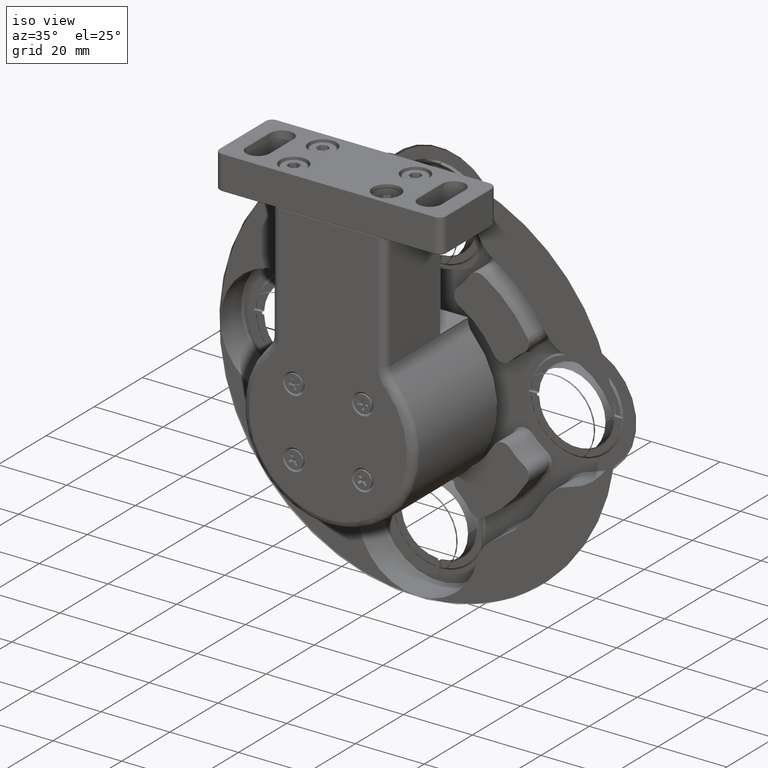
[diagram: clean part render]
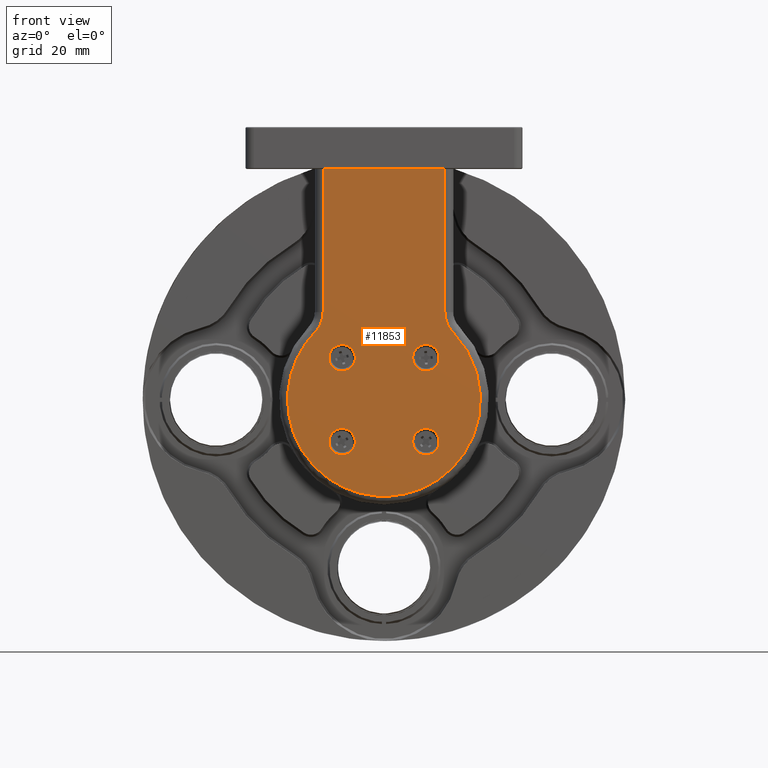
[diagram: tour spotlight — one face highlighted and labeled with its STEP entity id]
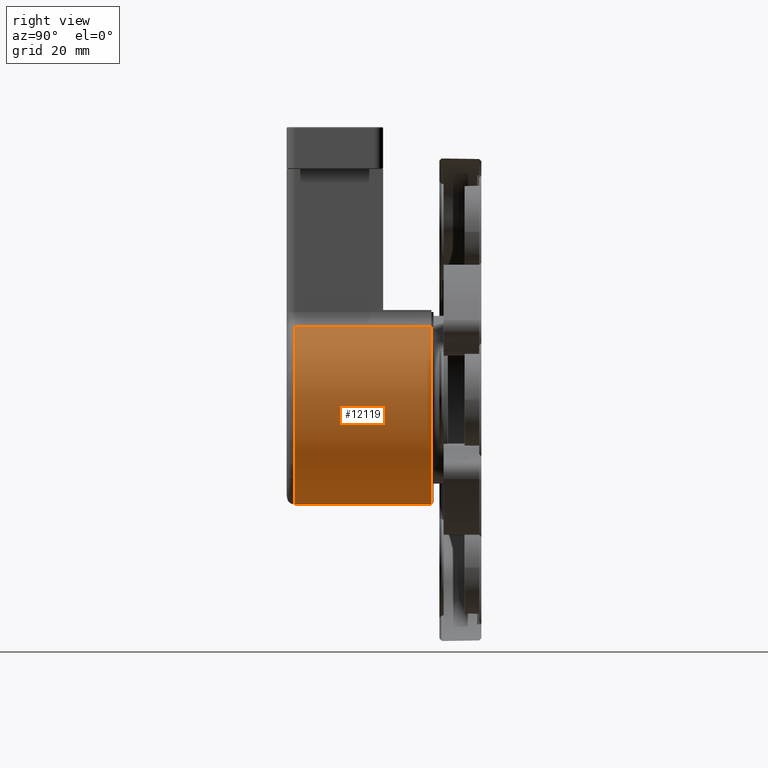
[diagram: tour spotlight — one face highlighted and labeled with its STEP entity id]
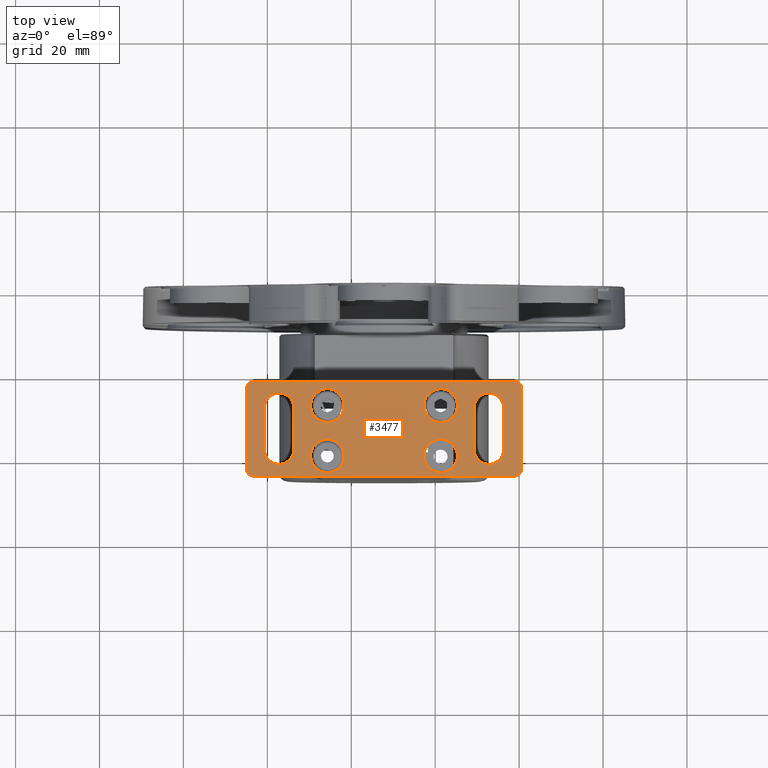
[diagram: tour spotlight — one face highlighted and labeled with its STEP entity id]
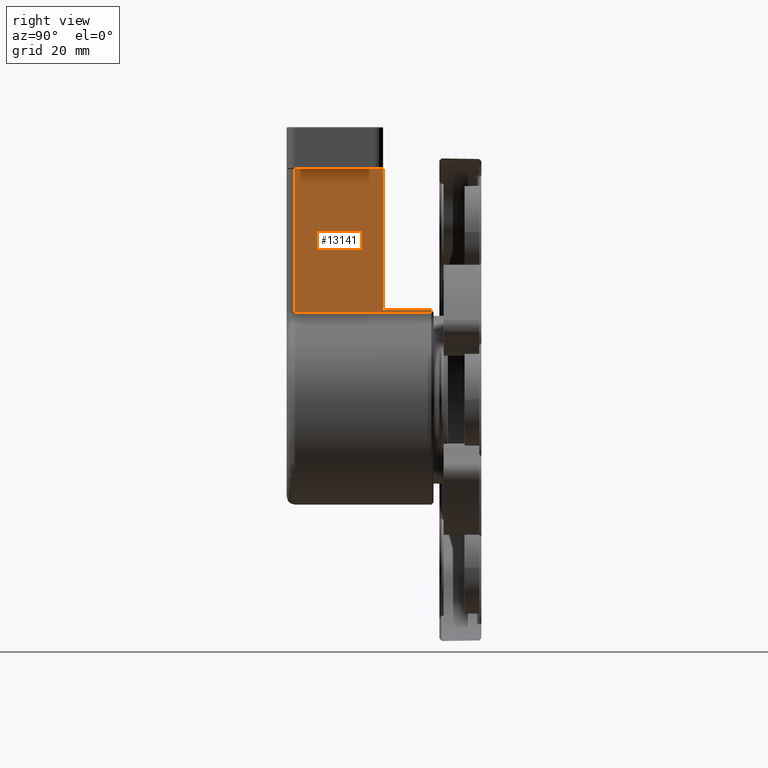
[diagram: tour spotlight — one face highlighted and labeled with its STEP entity id]
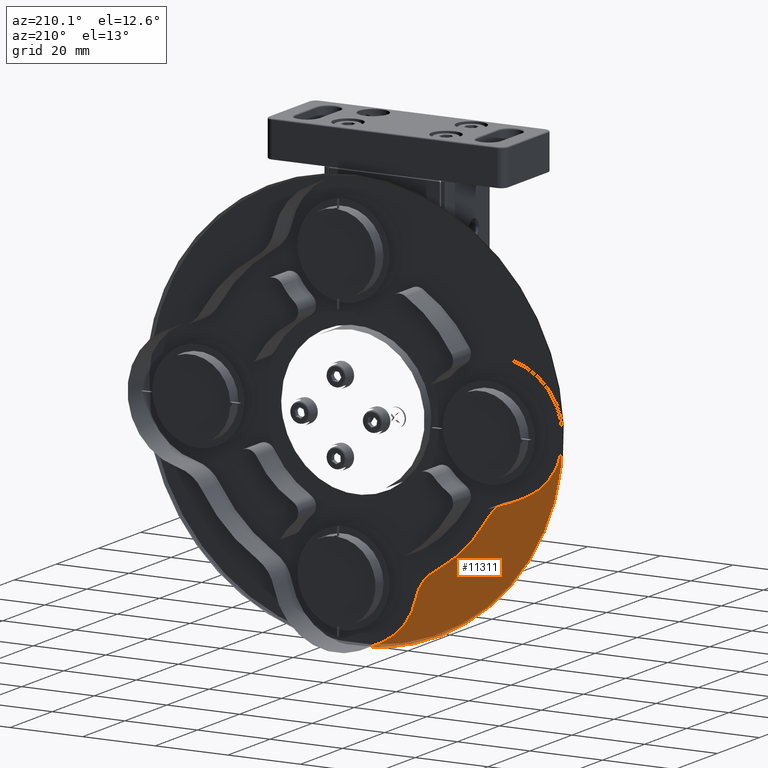
[diagram: tour spotlight — one face highlighted and labeled with its STEP entity id]
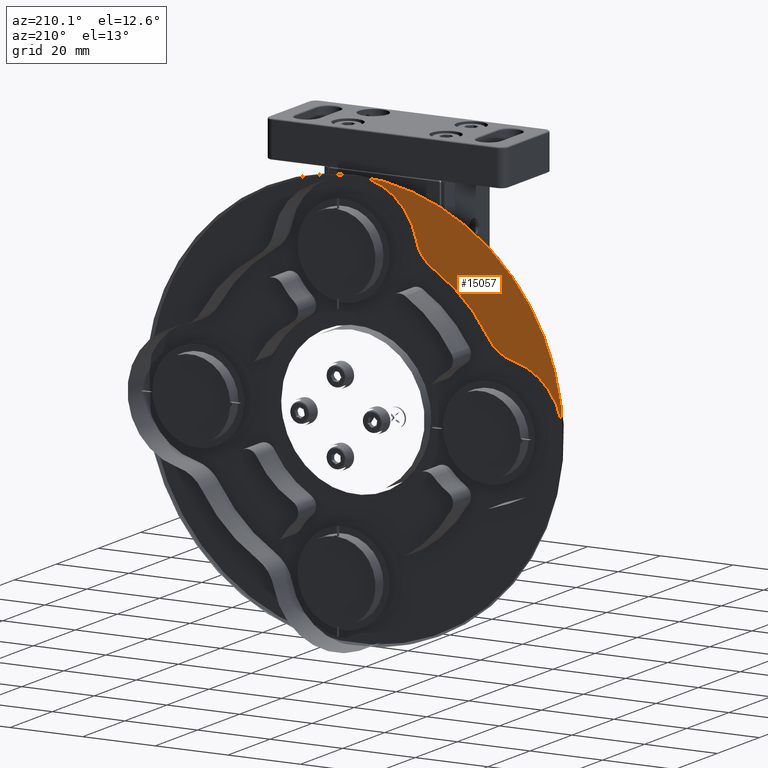
[diagram: tour spotlight — one face highlighted and labeled with its STEP entity id]
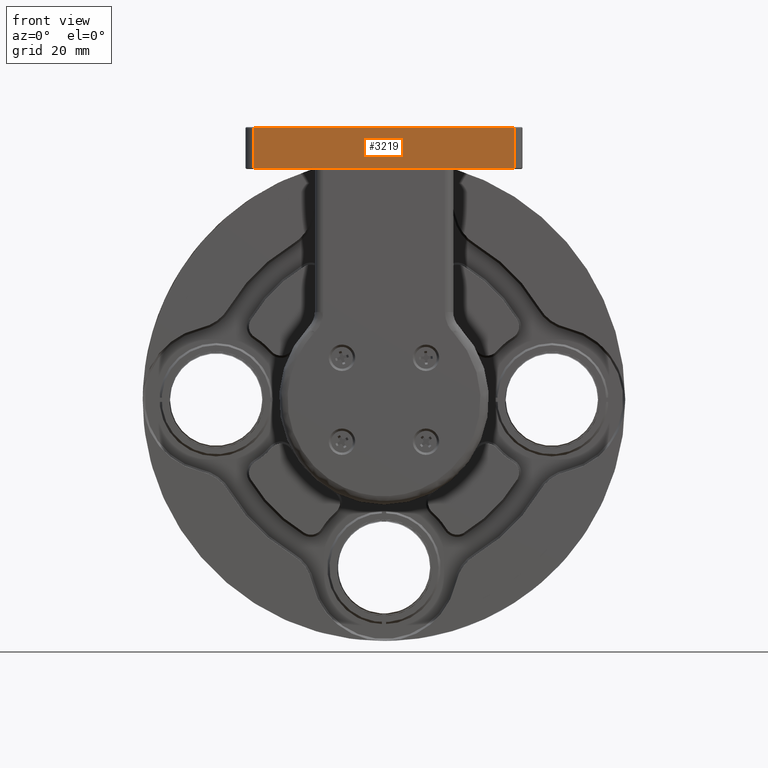
[diagram: tour spotlight — one face highlighted and labeled with its STEP entity id]
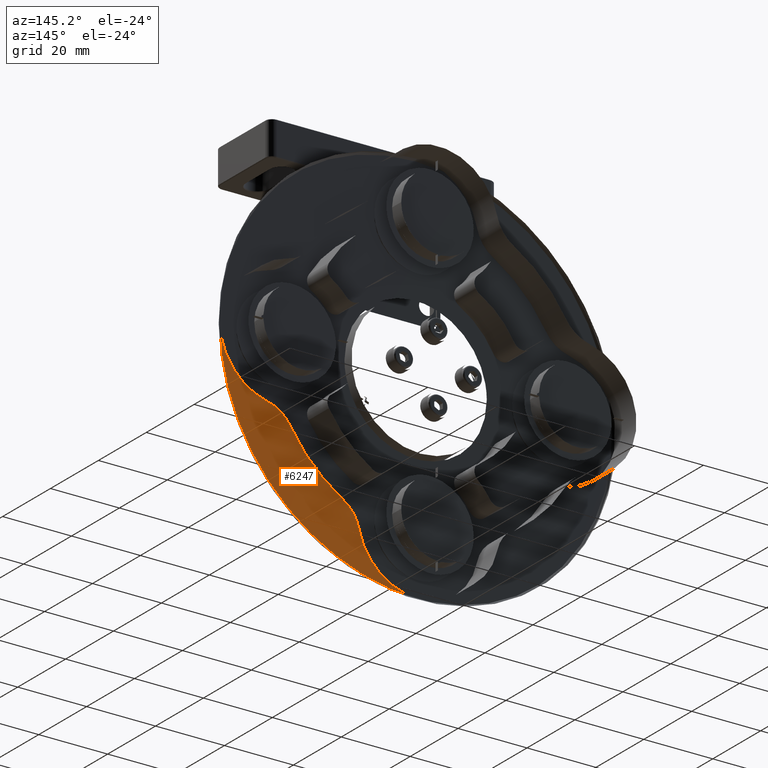
[diagram: tour spotlight — one face highlighted and labeled with its STEP entity id]
A machine part: a face-by-face anatomy tour. The part has 463 B-rep faces; the first image is the clean iso view, then the 8 largest visible faces are spotlighted one at a time (largest first), each with its STEP entity span.

Face 1 — front view, entity #11853. In plain terms, the highlighted planar face has unit normal (0, 1, 0).
Definition (entity closure, byte-faithful):
#113 = VERTEX_POINT ( 'NONE', #16134 ) ;
#339 = EDGE_CURVE ( 'NONE', #14257, #14257, #1466, .T. ) ;
#404 = LINE ( 'NONE', #3339, #3983 ) ;
#478 = CARTESIAN_POINT ( 'NONE',  ( -22.19565927654610960, -5.336517889477379484, 56.84999999999489262 ) ) ;
#678 = DIRECTION ( 'NONE',  ( 1.000000000000000000, 0.000000000000000000, -0.000000000000000000 ) ) ;
#719 = CARTESIAN_POINT ( 'NONE',  ( -56.03111030158331118, -5.336517889452011332, 46.99999999999996447 ) ) ;
#758 = CARTESIAN_POINT ( 'NONE',  ( -42.19565927654610960, -5.336517889477379484, 59.99999999999999289 ) ) ;
#875 = CARTESIAN_POINT ( 'NONE',  ( -46.69565927654610960, -5.336517889452011332, 89.07545668891039270 ) ) ;
#903 = CARTESIAN_POINT ( 'NONE',  ( -22.19565927654610960, -5.336517889516029456, 79.99999999999998579 ) ) ;
#1057 = FACE_BOUND ( 'NONE', #16730, .T. ) ;
#1309 = DIRECTION ( 'NONE',  ( -0.000000000000000000, 0.000000000000000000, -1.000000000000000000 ) ) ;
#1466 = CIRCLE ( 'NONE', #12555, 3.150000000005100276 ) ;
#1750 = EDGE_CURVE ( 'NONE', #10343, #10343, #2832, .T. ) ;
#2004 = CARTESIAN_POINT ( 'NONE',  ( -48.67899260987945098, -5.336517889452011332, 86.04056489722921697 ) ) ;
#2102 =( BOUNDED_CURVE ( )  B_SPLINE_CURVE ( 3, ( #12906, #12734, #3207, #10232, #719, #11571, #3552 ),
 .UNSPECIFIED., .F., .T. ) 
 B_SPLINE_CURVE_WITH_KNOTS ( ( 4, 3, 4 ),
 ( 0.000000000000000000, 0.5000000000000000000, 1.000000000000000000 ),
 .UNSPECIFIED. ) 
 CURVE ( )  GEOMETRIC_REPRESENTATION_ITEM ( )  RATIONAL_B_SPLINE_CURVE ( ( 1.000000000000000000, 0.5926418732377309873, 0.5926418732377309873, 1.000000000000000000, 0.5926418732377309873, 0.5926418732377309873, 1.000000000000000000 ) ) 
 REPRESENTATION_ITEM ( '' )  );
#2169 = DIRECTION ( 'NONE',  ( 0.000000000000000000, -1.000000000000000000, 0.000000000000000000 ) ) ;
#2379 = FACE_BOUND ( 'NONE', #11029, .T. ) ;
#2538 = AXIS2_PLACEMENT_3D ( 'NONE', #758, #2169, #8764 ) ;
#2670 = EDGE_CURVE ( 'NONE', #14726, #4566, #12658, .T. ) ;
#2832 = CIRCLE ( 'NONE', #8819, 3.150000000061936589 ) ;
#3037 = AXIS2_PLACEMENT_3D ( 'NONE', #6651, #17310, #9327 ) ;
#3207 = CARTESIAN_POINT ( 'NONE',  ( -8.360208251508856492, -5.336517889452011332, 47.00000000000000711 ) ) ;
#3339 = CARTESIAN_POINT ( 'NONE',  ( -32.19565927654610960, -5.336517889452012220, 125.0000000000000000 ) ) ;
#3354 = EDGE_CURVE ( 'NONE', #4566, #7593, #404, .T. ) ;
#3508 = ORIENTED_EDGE ( 'NONE', *, *, #15538, .F. ) ;
#3509 = CARTESIAN_POINT ( 'NONE',  ( -17.69565927654610604, -5.336517889452011332, 89.07545668891040691 ) ) ;
#3552 = CARTESIAN_POINT ( 'NONE',  ( -48.67899260987945098, -5.336517889452011332, 86.04056489722921697 ) ) ;
#3597 = EDGE_CURVE ( 'NONE', #13454, #13454, #16182, .T. ) ;
#3654 = EDGE_CURVE ( 'NONE', #113, #17037, #2102, .T. ) ;
#3685 = DIRECTION ( 'NONE',  ( 0.000000000000000000, -1.000000000000000000, 0.000000000000000000 ) ) ;
#3971 = LINE ( 'NONE', #8068, #7655 ) ;
#3983 = VECTOR ( 'NONE', #678, 1000.000000000000000 ) ;
#4103 = VERTEX_POINT ( 'NONE', #8315 ) ;
#4566 = VERTEX_POINT ( 'NONE', #16685 ) ;
#4964 = FACE_OUTER_BOUND ( 'NONE', #14673, .T. ) ;
#5174 = DIRECTION ( 'NONE',  ( 0.000000000000000000, -1.000000000000000000, 0.000000000000000000 ) ) ;
#5740 =( BOUNDED_CURVE ( )  B_SPLINE_CURVE ( 3, ( #11813, #17220, #875, #7899 ),
 .UNSPECIFIED., .F., .T. ) 
 B_SPLINE_CURVE_WITH_KNOTS ( ( 4, 4 ),
 ( 0.000000000000000000, 1.000000000000000000 ),
 .UNSPECIFIED. ) 
 CURVE ( )  GEOMETRIC_REPRESENTATION_ITEM ( )  RATIONAL_B_SPLINE_CURVE ( ( 1.000000000000000000, 0.9509752048749905429, 0.9509752048749905429, 1.000000000000000000 ) ) 
 REPRESENTATION_ITEM ( '' )  );
#5886 = DIRECTION ( 'NONE',  ( 0.000000000000000000, -0.000000000000000000, 1.000000000000000000 ) ) ;
#6123 = EDGE_LOOP ( 'NONE', ( #6753 ) ) ;
#6166 = CARTESIAN_POINT ( 'NONE',  ( -22.19565927654610960, -5.336517889516029456, 76.84999999993804920 ) ) ;
#6477 = PLANE ( 'NONE',  #3037 ) ;
#6651 = CARTESIAN_POINT ( 'NONE',  ( -32.19565927654610960, -5.336517889452012220, 69.99999999999998579 ) ) ;
#6753 = ORIENTED_EDGE ( 'NONE', *, *, #339, .F. ) ;
#6777 = ORIENTED_EDGE ( 'NONE', *, *, #3354, .F. ) ;
#7593 = VERTEX_POINT ( 'NONE', #16864 ) ;
#7601 = CARTESIAN_POINT ( 'NONE',  ( -46.69565927654610249, -5.336517889452011332, 90.92247595290767492 ) ) ;
#7655 = VECTOR ( 'NONE', #1309, 1000.000000000000000 ) ;
#7719 = EDGE_CURVE ( 'NONE', #17037, #14726, #5740, .T. ) ;
#7899 = CARTESIAN_POINT ( 'NONE',  ( -46.69565927654610249, -5.336517889452011332, 90.92247595290767492 ) ) ;
#8068 = CARTESIAN_POINT ( 'NONE',  ( -17.69565927654610604, -5.336517889452012220, 69.99999999999998579 ) ) ;
#8315 = CARTESIAN_POINT ( 'NONE',  ( -17.69565927654610960, -5.336517889452011332, 90.92247595290767492 ) ) ;
#8375 = CARTESIAN_POINT ( 'NONE',  ( -42.19565927654610960, -5.336517889477379484, 56.84999999999489262 ) ) ;
#8525 = AXIS2_PLACEMENT_3D ( 'NONE', #13123, #3685, #9122 ) ;
#8682 = CARTESIAN_POINT ( 'NONE',  ( -17.69565927654610960, -5.336517889452011332, 90.92247595290767492 ) ) ;
#8764 = DIRECTION ( 'NONE',  ( 0.000000000000000000, 0.000000000000000000, -1.000000000000000000 ) ) ;
#8819 = AXIS2_PLACEMENT_3D ( 'NONE', #903, #5174, #10599 ) ;
#9122 = DIRECTION ( 'NONE',  ( 0.000000000000000000, 0.000000000000000000, -1.000000000000000000 ) ) ;
#9327 = DIRECTION ( 'NONE',  ( 0.000000000000000000, -0.000000000000000000, 1.000000000000000000 ) ) ;
#9905 = DIRECTION ( 'NONE',  ( 0.000000000000000000, -1.000000000000000000, 0.000000000000000000 ) ) ;
#10232 = CARTESIAN_POINT ( 'NONE',  ( -32.19565927654608828, -5.336517889452011332, 46.99999999999998579 ) ) ;
#10343 = VERTEX_POINT ( 'NONE', #6166 ) ;
#10392 = FACE_BOUND ( 'NONE', #11717, .T. ) ;
#10520 = CARTESIAN_POINT ( 'NONE',  ( -42.19565927654610960, -5.336517889516029456, 76.84999999993804920 ) ) ;
#10599 = DIRECTION ( 'NONE',  ( 0.000000000000000000, 0.000000000000000000, -1.000000000000000000 ) ) ;
#11029 = EDGE_LOOP ( 'NONE', ( #13417 ) ) ;
#11525 = CARTESIAN_POINT ( 'NONE',  ( -17.00046648106410530, -5.336517889452011332, 87.36426203642727728 ) ) ;
#11571 = CARTESIAN_POINT ( 'NONE',  ( -65.30221430648111891, -5.336517889452011332, 68.95849166261916707 ) ) ;
#11717 = EDGE_LOOP ( 'NONE', ( #17571 ) ) ;
#11813 = CARTESIAN_POINT ( 'NONE',  ( -48.67899260987945098, -5.336517889452011332, 86.04056489722921697 ) ) ;
#11853 = ADVANCED_FACE ( 'NONE', ( #4964, #15894, #2379, #10392, #1057 ), #6477, .F. ) ;
#12310 = ORIENTED_EDGE ( 'NONE', *, *, #3654, .F. ) ;
#12520 = VECTOR ( 'NONE', #5886, 1000.000000000000000 ) ;
#12555 = AXIS2_PLACEMENT_3D ( 'NONE', #15413, #9905, #12580 ) ;
#12580 = DIRECTION ( 'NONE',  ( 0.000000000000000000, 0.000000000000000000, -1.000000000000000000 ) ) ;
#12655 = ORIENTED_EDGE ( 'NONE', *, *, #13920, .F. ) ;
#12658 = LINE ( 'NONE', #14416, #12520 ) ;
#12734 = CARTESIAN_POINT ( 'NONE',  ( 0.9108957533889017188, -5.336517889452011332, 68.95849166261922392 ) ) ;
#12906 = CARTESIAN_POINT ( 'NONE',  ( -15.71232594321277176, -5.336517889452011332, 86.04056489722921697 ) ) ;
#13021 =( BOUNDED_CURVE ( )  B_SPLINE_CURVE ( 3, ( #8682, #3509, #11525, #16926 ),
 .UNSPECIFIED., .F., .T. ) 
 B_SPLINE_CURVE_WITH_KNOTS ( ( 4, 4 ),
 ( 0.000000000000000000, 1.000000000000000000 ),
 .UNSPECIFIED. ) 
 CURVE ( )  GEOMETRIC_REPRESENTATION_ITEM ( )  RATIONAL_B_SPLINE_CURVE ( ( 1.000000000000000000, 0.9509752048749908759, 0.9509752048749908759, 1.000000000000000000 ) ) 
 REPRESENTATION_ITEM ( '' )  );
#13123 = CARTESIAN_POINT ( 'NONE',  ( -42.19565927654610960, -5.336517889516029456, 79.99999999999998579 ) ) ;
#13417 = ORIENTED_EDGE ( 'NONE', *, *, #3597, .F. ) ;
#13454 = VERTEX_POINT ( 'NONE', #10520 ) ;
#13920 = EDGE_CURVE ( 'NONE', #15127, #15127, #17292, .T. ) ;
#14257 = VERTEX_POINT ( 'NONE', #478 ) ;
#14302 = ORIENTED_EDGE ( 'NONE', *, *, #2670, .F. ) ;
#14416 = CARTESIAN_POINT ( 'NONE',  ( -46.69565927654610249, -5.336517889452012220, 69.99999999999998579 ) ) ;
#14673 = EDGE_LOOP ( 'NONE', ( #3508, #6777, #14302, #17345, #12310, #15724 ) ) ;
#14726 = VERTEX_POINT ( 'NONE', #7601 ) ;
#15127 = VERTEX_POINT ( 'NONE', #8375 ) ;
#15413 = CARTESIAN_POINT ( 'NONE',  ( -22.19565927654610960, -5.336517889477379484, 59.99999999999999289 ) ) ;
#15538 = EDGE_CURVE ( 'NONE', #7593, #4103, #3971, .T. ) ;
#15724 = ORIENTED_EDGE ( 'NONE', *, *, #15797, .F. ) ;
#15797 = EDGE_CURVE ( 'NONE', #4103, #113, #13021, .T. ) ;
#15894 = FACE_BOUND ( 'NONE', #6123, .T. ) ;
#16134 = CARTESIAN_POINT ( 'NONE',  ( -15.71232594321277176, -5.336517889452011332, 86.04056489722921697 ) ) ;
#16182 = CIRCLE ( 'NONE', #8525, 3.150000000061936589 ) ;
#16685 = CARTESIAN_POINT ( 'NONE',  ( -46.69565927654610249, -5.336517889452012220, 125.0000000000000000 ) ) ;
#16730 = EDGE_LOOP ( 'NONE', ( #12655 ) ) ;
#16864 = CARTESIAN_POINT ( 'NONE',  ( -17.69565927654610604, -5.336517889452012220, 125.0000000000000000 ) ) ;
#16926 = CARTESIAN_POINT ( 'NONE',  ( -15.71232594321277176, -5.336517889452011332, 86.04056489722921697 ) ) ;
#17037 = VERTEX_POINT ( 'NONE', #2004 ) ;
#17220 = CARTESIAN_POINT ( 'NONE',  ( -47.39085207202811034, -5.336517889452011332, 87.36426203642724886 ) ) ;
#17292 = CIRCLE ( 'NONE', #2538, 3.150000000005100276 ) ;
#17310 = DIRECTION ( 'NONE',  ( 0.000000000000000000, 1.000000000000000000, 0.000000000000000000 ) ) ;
#17345 = ORIENTED_EDGE ( 'NONE', *, *, #7719, .F. ) ;
#17571 = ORIENTED_EDGE ( 'NONE', *, *, #1750, .F. ) ;

Face 2 — right view, entity #12119. In plain terms, the highlighted cylindrical surface (partial cylindrical patch) has radius 25 mm, axis along (0, 1, 0).
Definition (entity closure, byte-faithful):
#488 = EDGE_CURVE ( 'NONE', #15331, #11247, #12273, .T. ) ;
#770 = FACE_OUTER_BOUND ( 'NONE', #8619, .T. ) ;
#1628 = CARTESIAN_POINT ( 'NONE',  ( -14.27899260987942931, -5.336517889452012220, 87.43539662742306007 ) ) ;
#1799 = CARTESIAN_POINT ( 'NONE',  ( -50.11232594321724321, 29.16348211055486317, 87.43539662741061136 ) ) ;
#1919 = DIRECTION ( 'NONE',  ( 0.000000000000000000, 1.000000000000000000, 0.000000000000000000 ) ) ;
#2398 = CARTESIAN_POINT ( 'NONE',  ( -14.27899260987943286, -3.336517889452010888, 87.43539662742306007 ) ) ;
#2772 = AXIS2_PLACEMENT_3D ( 'NONE', #8692, #1919, #12783 ) ;
#2873 = LINE ( 'NONE', #1628, #16922 ) ;
#3157 = CARTESIAN_POINT ( 'NONE',  ( -50.11232594321278810, -5.336517889452012220, 87.43539662742306007 ) ) ;
#3894 = DIRECTION ( 'NONE',  ( 0.000000000000000000, 1.000000000000000000, 0.000000000000000000 ) ) ;
#3914 = ORIENTED_EDGE ( 'NONE', *, *, #8811, .T. ) ;
#4876 = DIRECTION ( 'NONE',  ( 0.000000000000000000, 0.000000000000000000, 1.000000000000000000 ) ) ;
#6088 = EDGE_CURVE ( 'NONE', #7219, #11285, #8343, .T. ) ;
#6167 = CARTESIAN_POINT ( 'NONE',  ( -32.19565927654610960, 29.16348211054798512, 69.99999999999998579 ) ) ;
#6702 = DIRECTION ( 'NONE',  ( 0.000000000000000000, 1.000000000000000000, 0.000000000000000000 ) ) ;
#7216 = CARTESIAN_POINT ( 'NONE',  ( -14.27899260990338171, 29.16348211052644146, 87.43539662741061136 ) ) ;
#7219 = VERTEX_POINT ( 'NONE', #2398 ) ;
#8343 = CIRCLE ( 'NONE', #8640, 25.00000000000000711 ) ;
#8372 = CARTESIAN_POINT ( 'NONE',  ( -50.11232594321278810, -3.336517889452010888, 87.43539662742306007 ) ) ;
#8482 = ORIENTED_EDGE ( 'NONE', *, *, #6088, .T. ) ;
#8511 = CYLINDRICAL_SURFACE ( 'NONE', #2772, 25.00000000000000711 ) ;
#8619 = EDGE_LOOP ( 'NONE', ( #17043, #3914, #8482, #13726 ) ) ;
#8640 = AXIS2_PLACEMENT_3D ( 'NONE', #10475, #3894, #4876 ) ;
#8692 = CARTESIAN_POINT ( 'NONE',  ( -32.19565927654610960, -5.336517889452012220, 69.99999999999998579 ) ) ;
#8756 = DIRECTION ( 'NONE',  ( 8.326672684688672081E-16, 0.000000000000000000, 1.000000000000000000 ) ) ;
#8811 = EDGE_CURVE ( 'NONE', #11247, #7219, #2873, .T. ) ;
#10356 = LINE ( 'NONE', #3157, #16740 ) ;
#10475 = CARTESIAN_POINT ( 'NONE',  ( -32.19565927654610960, -3.336517889452010888, 69.99999999999998579 ) ) ;
#11247 = VERTEX_POINT ( 'NONE', #7216 ) ;
#11285 = VERTEX_POINT ( 'NONE', #8372 ) ;
#12119 = ADVANCED_FACE ( 'NONE', ( #770 ), #8511, .T. ) ;
#12260 = AXIS2_PLACEMENT_3D ( 'NONE', #6167, #12848, #8756 ) ;
#12273 = CIRCLE ( 'NONE', #12260, 25.00000000000000711 ) ;
#12783 = DIRECTION ( 'NONE',  ( 0.000000000000000000, 0.000000000000000000, 1.000000000000000000 ) ) ;
#12842 = DIRECTION ( 'NONE',  ( -0.000000000000000000, -1.000000000000000000, -0.000000000000000000 ) ) ;
#12848 = DIRECTION ( 'NONE',  ( -0.000000000000000000, -1.000000000000000000, -0.000000000000000000 ) ) ;
#13726 = ORIENTED_EDGE ( 'NONE', *, *, #14838, .T. ) ;
#14838 = EDGE_CURVE ( 'NONE', #11285, #15331, #10356, .T. ) ;
#15331 = VERTEX_POINT ( 'NONE', #1799 ) ;
#16740 = VECTOR ( 'NONE', #6702, 1000.000000000000000 ) ;
#16922 = VECTOR ( 'NONE', #12842, 1000.000000000000000 ) ;
#17043 = ORIENTED_EDGE ( 'NONE', *, *, #488, .T. ) ;

Face 3 — top view, entity #3477. In plain terms, the highlighted planar face has unit normal (0, 0, -1).
Definition (entity closure, byte-faithful):
#164 = CARTESIAN_POINT ( 'NONE',  ( -57.19565927654610960, 11.16348211054799933, 135.0000000000477485 ) ) ;
#315 = DIRECTION ( 'NONE',  ( 0.000000000000000000, 0.000000000000000000, -1.000000000000000000 ) ) ;
#338 = CARTESIAN_POINT ( 'NONE',  ( -65.19565927654610960, 17.46348211054798583, 135.0000000000000000 ) ) ;
#401 = AXIS2_PLACEMENT_3D ( 'NONE', #3779, #16046, #3868 ) ;
#442 = EDGE_CURVE ( 'NONE', #5658, #7713, #5994, .T. ) ;
#498 = FACE_OUTER_BOUND ( 'NONE', #15634, .T. ) ;
#587 = AXIS2_PLACEMENT_3D ( 'NONE', #1870, #12821, #632 ) ;
#632 = DIRECTION ( 'NONE',  ( 1.000000000000000000, 0.000000000000000000, 0.000000000000000000 ) ) ;
#830 = LINE ( 'NONE', #11679, #1500 ) ;
#981 = CARTESIAN_POINT ( 'NONE',  ( -10.69565927654611137, 1.163482110547997328, 135.0000000000000000 ) ) ;
#1016 = DIRECTION ( 'NONE',  ( -1.000000000000000000, 0.000000000000000000, 0.000000000000000000 ) ) ;
#1095 = DIRECTION ( 'NONE',  ( 1.734723475976822625E-16, 1.000000000000000000, -1.734723475976807587E-16 ) ) ;
#1134 = VECTOR ( 'NONE', #3683, 1000.000000000000000 ) ;
#1194 = EDGE_CURVE ( 'NONE', #2774, #5123, #17364, .T. ) ;
#1248 = CARTESIAN_POINT ( 'NONE',  ( -60.69565927654155502, 1.163482110548000881, 134.9999999999954525 ) ) ;
#1252 = EDGE_CURVE ( 'NONE', #2774, #12804, #4199, .T. ) ;
#1271 = VERTEX_POINT ( 'NONE', #10701 ) ;
#1493 = AXIS2_PLACEMENT_3D ( 'NONE', #7991, #2809, #5398 ) ;
#1500 = VECTOR ( 'NONE', #4917, 1000.000000000000000 ) ;
#1552 = ORIENTED_EDGE ( 'NONE', *, *, #11130, .F. ) ;
#1670 = DIRECTION ( 'NONE',  ( -1.000000000000000000, 5.256737805990324174E-17, 5.256737805990324174E-17 ) ) ;
#1755 = VECTOR ( 'NONE', #2878, 1000.000000000000000 ) ;
#1870 = CARTESIAN_POINT ( 'NONE',  ( -18.69565927654610960, 11.66348211054799044, 135.0000000000000000 ) ) ;
#1915 = ORIENTED_EDGE ( 'NONE', *, *, #15978, .T. ) ;
#2248 = VERTEX_POINT ( 'NONE', #7557 ) ;
#2485 = DIRECTION ( 'NONE',  ( -0.000000000000000000, -1.000000000000000000, -0.000000000000000000 ) ) ;
#2577 = CARTESIAN_POINT ( 'NONE',  ( -45.69565927654610249, -0.3365178894520108877, 135.0000000000000000 ) ) ;
#2623 = DIRECTION ( 'NONE',  ( -0.000000000000000000, 0.000000000000000000, -1.000000000000000000 ) ) ;
#2691 = CIRCLE ( 'NONE', #3821, 3.999999999999996447 ) ;
#2774 = VERTEX_POINT ( 'NONE', #7754 ) ;
#2809 = DIRECTION ( 'NONE',  ( -0.000000000000000000, -0.000000000000000000, -1.000000000000000000 ) ) ;
#2878 = DIRECTION ( 'NONE',  ( -1.734723475976822625E-16, 1.000000000000000000, -1.734723475976807587E-16 ) ) ;
#3134 = CARTESIAN_POINT ( 'NONE',  ( -53.69565927654610960, 6.163482110547995774, 135.0000000000000000 ) ) ;
#3141 = VERTEX_POINT ( 'NONE', #11189 ) ;
#3304 = CIRCLE ( 'NONE', #10684, 3.500000000029389380 ) ;
#3469 = CIRCLE ( 'NONE', #15388, 3.500000000018023361 ) ;
#3477 = ADVANCED_FACE ( 'NONE', ( #12865, #16928, #12691, #12507, #498, #8414, #4755 ), #16753, .F. ) ;
#3494 = CARTESIAN_POINT ( 'NONE',  ( -1.195659276546107153, -5.136517889484975008, 134.9999999999670308 ) ) ;
#3634 = EDGE_CURVE ( 'NONE', #1271, #1271, #12221, .T. ) ;
#3644 = DIRECTION ( 'NONE',  ( 1.000000000000000000, 0.000000000000000000, 0.000000000000000000 ) ) ;
#3683 = DIRECTION ( 'NONE',  ( -0.000000000000000000, -1.000000000000000000, -0.000000000000000000 ) ) ;
#3778 = VERTEX_POINT ( 'NONE', #12096 ) ;
#3779 = CARTESIAN_POINT ( 'NONE',  ( -18.69565927654610960, -0.3365178894520108877, 135.0000000000000000 ) ) ;
#3821 = AXIS2_PLACEMENT_3D ( 'NONE', #2577, #8008, #3644 ) ;
#3868 = DIRECTION ( 'NONE',  ( 1.000000000000000000, 0.000000000000000000, 0.000000000000000000 ) ) ;
#4078 = DIRECTION ( 'NONE',  ( 1.000000000000000000, 0.000000000000000000, 0.000000000000000000 ) ) ;
#4111 = EDGE_CURVE ( 'NONE', #17484, #5658, #17374, .T. ) ;
#4199 = CIRCLE ( 'NONE', #8478, 1.800000000032636605 ) ;
#4221 = EDGE_LOOP ( 'NONE', ( #15465 ) ) ;
#4262 = EDGE_LOOP ( 'NONE', ( #17285 ) ) ;
#4346 = VERTEX_POINT ( 'NONE', #13378 ) ;
#4431 = EDGE_CURVE ( 'NONE', #2248, #10310, #3469, .T. ) ;
#4542 = AXIS2_PLACEMENT_3D ( 'NONE', #5023, #15948, #11874 ) ;
#4623 = EDGE_CURVE ( 'NONE', #7703, #3778, #15631, .T. ) ;
#4661 = CIRCLE ( 'NONE', #14584, 1.799999999987617061 ) ;
#4755 = FACE_BOUND ( 'NONE', #8800, .T. ) ;
#4905 = CIRCLE ( 'NONE', #1493, 1.800000000032636605 ) ;
#4917 = DIRECTION ( 'NONE',  ( 0.000000000000000000, 1.000000000000000000, -0.000000000000000000 ) ) ;
#4946 = EDGE_CURVE ( 'NONE', #7414, #3778, #4905, .T. ) ;
#5023 = CARTESIAN_POINT ( 'NONE',  ( -7.195659276546105154, 1.163482110548000881, 134.9999999999909051 ) ) ;
#5070 = LINE ( 'NONE', #981, #16153 ) ;
#5123 = VERTEX_POINT ( 'NONE', #3494 ) ;
#5170 = EDGE_CURVE ( 'NONE', #13219, #9559, #830, .T. ) ;
#5280 = ORIENTED_EDGE ( 'NONE', *, *, #15954, .T. ) ;
#5398 = DIRECTION ( 'NONE',  ( -1.000000000000000000, 0.000000000000000000, 0.000000000000000000 ) ) ;
#5455 = AXIS2_PLACEMENT_3D ( 'NONE', #9569, #9481, #8147 ) ;
#5658 = VERTEX_POINT ( 'NONE', #1248 ) ;
#5663 = CARTESIAN_POINT ( 'NONE',  ( -64.99565927657907594, -3.336517889452008223, 134.9999999999670308 ) ) ;
#5703 = CARTESIAN_POINT ( 'NONE',  ( -41.69565927654610960, 11.66348211054799044, 135.0000000000000000 ) ) ;
#5741 = DIRECTION ( 'NONE',  ( -1.000000000000000000, 0.000000000000000000, -0.000000000000000000 ) ) ;
#5994 = LINE ( 'NONE', #11424, #1755 ) ;
#6226 = CARTESIAN_POINT ( 'NONE',  ( -3.695659276533898918, 11.16348211054799755, 135.0000000000216005 ) ) ;
#6308 = EDGE_CURVE ( 'NONE', #7703, #9559, #4661, .T. ) ;
#6544 = CARTESIAN_POINT ( 'NONE',  ( -1.195659276546107153, -3.336517889452010888, 134.9999999999340616 ) ) ;
#6906 = DIRECTION ( 'NONE',  ( -1.000000000000000000, 0.000000000000000000, 0.000000000000000000 ) ) ;
#6923 = ORIENTED_EDGE ( 'NONE', *, *, #10507, .T. ) ;
#7095 = DIRECTION ( 'NONE',  ( 0.000000000000000000, -0.000000000000000000, -1.000000000000000000 ) ) ;
#7140 = EDGE_LOOP ( 'NONE', ( #13900, #10984, #1552, #1915 ) ) ;
#7338 = EDGE_CURVE ( 'NONE', #10787, #10787, #2691, .T. ) ;
#7414 = VERTEX_POINT ( 'NONE', #9688 ) ;
#7430 = ORIENTED_EDGE ( 'NONE', *, *, #4623, .T. ) ;
#7557 = CARTESIAN_POINT ( 'NONE',  ( -10.69565927656998205, 11.16348211054800288, 135.0000000000238742 ) ) ;
#7703 = VERTEX_POINT ( 'NONE', #9324 ) ;
#7713 = VERTEX_POINT ( 'NONE', #14470 ) ;
#7754 = CARTESIAN_POINT ( 'NONE',  ( -63.19565927654609538, -5.136517889429145001, 134.9999999999789679 ) ) ;
#7872 = LINE ( 'NONE', #8048, #1134 ) ;
#7953 = CIRCLE ( 'NONE', #4542, 3.500000000018023361 ) ;
#7991 = CARTESIAN_POINT ( 'NONE',  ( -63.19565927654610960, 15.66348211054799755, 134.9999999999340616 ) ) ;
#8008 = DIRECTION ( 'NONE',  ( 0.000000000000000000, 0.000000000000000000, 1.000000000000000000 ) ) ;
#8048 = CARTESIAN_POINT ( 'NONE',  ( -64.99565927654610675, 17.66348211054799577, 135.0000000000000000 ) ) ;
#8089 = CARTESIAN_POINT ( 'NONE',  ( 0.6043407234584414756, 15.66348211054799044, 134.9999999999954525 ) ) ;
#8147 = DIRECTION ( 'NONE',  ( 1.000000000000000000, -1.796677885847214746E-15, 0.000000000000000000 ) ) ;
#8257 = CARTESIAN_POINT ( 'NONE',  ( -45.69565927654610249, 11.66348211054799044, 135.0000000000000000 ) ) ;
#8414 = FACE_BOUND ( 'NONE', #7140, .T. ) ;
#8465 = VERTEX_POINT ( 'NONE', #5703 ) ;
#8478 = AXIS2_PLACEMENT_3D ( 'NONE', #13202, #14700, #1016 ) ;
#8744 = DIRECTION ( 'NONE',  ( -0.000000000000000000, -1.000000000000000000, -0.000000000000000000 ) ) ;
#8800 = EDGE_LOOP ( 'NONE', ( #11138, #6923, #14339, #12957 ) ) ;
#9296 = ORIENTED_EDGE ( 'NONE', *, *, #1252, .F. ) ;
#9324 = CARTESIAN_POINT ( 'NONE',  ( -1.195659276546108041, 17.46348211054943889, 135.0000000000193268 ) ) ;
#9456 = VECTOR ( 'NONE', #1670, 1000.000000000000000 ) ;
#9481 = DIRECTION ( 'NONE',  ( 0.000000000000000000, -0.000000000000000000, -1.000000000000000000 ) ) ;
#9559 = VERTEX_POINT ( 'NONE', #8089 ) ;
#9569 = CARTESIAN_POINT ( 'NONE',  ( -57.19565927654610960, 1.163482110548000881, 134.9999999999909051 ) ) ;
#9688 = CARTESIAN_POINT ( 'NONE',  ( -64.99565927652518837, 15.66348211054799755, 134.9999999999789679 ) ) ;
#9756 = CARTESIAN_POINT ( 'NONE',  ( -1.195659276546107153, 15.66348211054799044, 134.9999999999909051 ) ) ;
#9887 = ORIENTED_EDGE ( 'NONE', *, *, #4946, .F. ) ;
#10077 = ORIENTED_EDGE ( 'NONE', *, *, #6308, .F. ) ;
#10310 = VERTEX_POINT ( 'NONE', #6226 ) ;
#10507 = EDGE_CURVE ( 'NONE', #7713, #4346, #3304, .T. ) ;
#10517 = CARTESIAN_POINT ( 'NONE',  ( -3.695659276546105598, 1.163482110548000881, 135.0000000000000000 ) ) ;
#10684 = AXIS2_PLACEMENT_3D ( 'NONE', #164, #7095, #4078 ) ;
#10701 = CARTESIAN_POINT ( 'NONE',  ( -14.69565927654611137, 11.66348211054799044, 135.0000000000000000 ) ) ;
#10787 = VERTEX_POINT ( 'NONE', #14691 ) ;
#10984 = ORIENTED_EDGE ( 'NONE', *, *, #4431, .T. ) ;
#11027 = VECTOR ( 'NONE', #15943, 1000.000000000000000 ) ;
#11130 = EDGE_CURVE ( 'NONE', #11699, #10310, #16279, .T. ) ;
#11138 = ORIENTED_EDGE ( 'NONE', *, *, #442, .T. ) ;
#11189 = CARTESIAN_POINT ( 'NONE',  ( -10.69565927654156035, 1.163482110547997328, 134.9999999999954525 ) ) ;
#11316 = ORIENTED_EDGE ( 'NONE', *, *, #5170, .T. ) ;
#11317 = DIRECTION ( 'NONE',  ( 0.000000000000000000, -0.000000000000000000, -1.000000000000000000 ) ) ;
#11413 = LINE ( 'NONE', #3134, #13079 ) ;
#11424 = CARTESIAN_POINT ( 'NONE',  ( -60.69565927654610249, 6.163482110547986004, 135.0000000000000000 ) ) ;
#11679 = CARTESIAN_POINT ( 'NONE',  ( 0.6043407234538906714, 17.66348211054798867, 135.0000000000000000 ) ) ;
#11699 = VERTEX_POINT ( 'NONE', #16690 ) ;
#11874 = DIRECTION ( 'NONE',  ( 1.000000000000000000, 0.000000000000000000, 0.000000000000000000 ) ) ;
#12057 = EDGE_LOOP ( 'NONE', ( #12769 ) ) ;
#12096 = CARTESIAN_POINT ( 'NONE',  ( -63.19565927654610960, 17.46348211058096211, 134.9999999999670308 ) ) ;
#12221 = CIRCLE ( 'NONE', #587, 3.999999999999996447 ) ;
#12326 = AXIS2_PLACEMENT_3D ( 'NONE', #6544, #2623, #17286 ) ;
#12347 = DIRECTION ( 'NONE',  ( 0.000000000000000000, 0.000000000000000000, 1.000000000000000000 ) ) ;
#12432 = DIRECTION ( 'NONE',  ( 1.000000000000000000, 0.000000000000000000, 0.000000000000000000 ) ) ;
#12507 = FACE_BOUND ( 'NONE', #4221, .T. ) ;
#12579 = CARTESIAN_POINT ( 'NONE',  ( -53.69565927655066417, 1.163482110547995774, 134.9999999999954525 ) ) ;
#12654 = CARTESIAN_POINT ( 'NONE',  ( -7.195659276546105154, 11.16348211054799933, 135.0000000000477485 ) ) ;
#12691 = FACE_BOUND ( 'NONE', #12057, .T. ) ;
#12769 = ORIENTED_EDGE ( 'NONE', *, *, #7338, .F. ) ;
#12804 = VERTEX_POINT ( 'NONE', #5663 ) ;
#12821 = DIRECTION ( 'NONE',  ( 0.000000000000000000, 0.000000000000000000, 1.000000000000000000 ) ) ;
#12865 = FACE_BOUND ( 'NONE', #4262, .T. ) ;
#12957 = ORIENTED_EDGE ( 'NONE', *, *, #4111, .T. ) ;
#13079 = VECTOR ( 'NONE', #8744, 1000.000000000000000 ) ;
#13202 = CARTESIAN_POINT ( 'NONE',  ( -63.19565927654610960, -3.336517889452000674, 134.9999999999340616 ) ) ;
#13219 = VERTEX_POINT ( 'NONE', #14894 ) ;
#13378 = CARTESIAN_POINT ( 'NONE',  ( -53.69565927653065529, 11.16348211054799933, 135.0000000000477485 ) ) ;
#13670 = DIRECTION ( 'NONE',  ( -0.000000000000000000, -0.000000000000000000, -1.000000000000000000 ) ) ;
#13756 = EDGE_CURVE ( 'NONE', #2248, #3141, #5070, .T. ) ;
#13832 = CARTESIAN_POINT ( 'NONE',  ( -32.19565927654610960, 6.163482110547995774, 135.0000000000000000 ) ) ;
#13900 = ORIENTED_EDGE ( 'NONE', *, *, #13756, .F. ) ;
#13978 = CARTESIAN_POINT ( 'NONE',  ( -14.69565927654611492, -0.3365178894520108877, 135.0000000000000000 ) ) ;
#14240 = EDGE_CURVE ( 'NONE', #8465, #8465, #17019, .T. ) ;
#14315 = CIRCLE ( 'NONE', #12326, 1.799999999987617061 ) ;
#14339 = ORIENTED_EDGE ( 'NONE', *, *, #15261, .T. ) ;
#14384 = ORIENTED_EDGE ( 'NONE', *, *, #3634, .F. ) ;
#14470 = CARTESIAN_POINT ( 'NONE',  ( -60.69565927656997673, 11.16348211054799933, 135.0000000000238742 ) ) ;
#14525 = CARTESIAN_POINT ( 'NONE',  ( -65.19565927654610960, -5.136517889451996943, 135.0000000000000000 ) ) ;
#14584 = AXIS2_PLACEMENT_3D ( 'NONE', #9756, #13670, #6906 ) ;
#14691 = CARTESIAN_POINT ( 'NONE',  ( -41.69565927654610960, -0.3365178894520108877, 135.0000000000000000 ) ) ;
#14700 = DIRECTION ( 'NONE',  ( -0.000000000000000000, -0.000000000000000000, -1.000000000000000000 ) ) ;
#14894 = CARTESIAN_POINT ( 'NONE',  ( 0.6043407234868631850, -3.336517889452017993, 134.9999999999670308 ) ) ;
#15261 = EDGE_CURVE ( 'NONE', #4346, #17484, #11413, .T. ) ;
#15388 = AXIS2_PLACEMENT_3D ( 'NONE', #12654, #11317, #16632 ) ;
#15465 = ORIENTED_EDGE ( 'NONE', *, *, #14240, .F. ) ;
#15585 = ORIENTED_EDGE ( 'NONE', *, *, #17223, .F. ) ;
#15631 = LINE ( 'NONE', #338, #9456 ) ;
#15634 = EDGE_LOOP ( 'NONE', ( #16770, #15585, #11316, #10077, #7430, #9887, #5280, #9296 ) ) ;
#15730 = CIRCLE ( 'NONE', #401, 3.999999999999993339 ) ;
#15943 = DIRECTION ( 'NONE',  ( 1.000000000000000000, -6.570922257487933413E-17, 6.570922257487906296E-17 ) ) ;
#15948 = DIRECTION ( 'NONE',  ( 0.000000000000000000, -0.000000000000000000, -1.000000000000000000 ) ) ;
#15954 = EDGE_CURVE ( 'NONE', #7414, #12804, #7872, .T. ) ;
#15978 = EDGE_CURVE ( 'NONE', #11699, #3141, #7953, .T. ) ;
#16046 = DIRECTION ( 'NONE',  ( 0.000000000000000000, 0.000000000000000000, 1.000000000000000000 ) ) ;
#16153 = VECTOR ( 'NONE', #2485, 1000.000000000000000 ) ;
#16165 = AXIS2_PLACEMENT_3D ( 'NONE', #8257, #12347, #12432 ) ;
#16279 = LINE ( 'NONE', #10517, #16920 ) ;
#16601 = EDGE_LOOP ( 'NONE', ( #14384 ) ) ;
#16632 = DIRECTION ( 'NONE',  ( 1.000000000000000000, 9.912705576959281318E-16, 0.000000000000000000 ) ) ;
#16690 = CARTESIAN_POINT ( 'NONE',  ( -3.695659276550656624, 1.163482110548000881, 134.9999999999954525 ) ) ;
#16714 = VERTEX_POINT ( 'NONE', #13978 ) ;
#16753 = PLANE ( 'NONE',  #17313 ) ;
#16770 = ORIENTED_EDGE ( 'NONE', *, *, #1194, .T. ) ;
#16920 = VECTOR ( 'NONE', #1095, 1000.000000000000000 ) ;
#16928 = FACE_BOUND ( 'NONE', #16601, .T. ) ;
#17019 = CIRCLE ( 'NONE', #16165, 3.999999999999996447 ) ;
#17198 = EDGE_CURVE ( 'NONE', #16714, #16714, #15730, .T. ) ;
#17223 = EDGE_CURVE ( 'NONE', #13219, #5123, #14315, .T. ) ;
#17285 = ORIENTED_EDGE ( 'NONE', *, *, #17198, .F. ) ;
#17286 = DIRECTION ( 'NONE',  ( -1.000000000000000000, 0.000000000000000000, 0.000000000000000000 ) ) ;
#17313 = AXIS2_PLACEMENT_3D ( 'NONE', #13832, #315, #5741 ) ;
#17364 = LINE ( 'NONE', #14525, #11027 ) ;
#17374 = CIRCLE ( 'NONE', #5455, 3.499999999972545961 ) ;
#17484 = VERTEX_POINT ( 'NONE', #12579 ) ;

Face 4 — right view, entity #13141. In plain terms, the highlighted planar face has unit normal (-1, 0, 0).
Definition (entity closure, byte-faithful):
#1280 = CARTESIAN_POINT ( 'NONE',  ( -15.69565927654609894, 17.66348211054798867, 91.37171027316250616 ) ) ;
#1317 = EDGE_CURVE ( 'NONE', #13437, #10349, #8042, .T. ) ;
#1320 = VERTEX_POINT ( 'NONE', #16368 ) ;
#1385 = DIRECTION ( 'NONE',  ( 0.000000000000000000, 0.000000000000000000, 1.000000000000000000 ) ) ;
#1468 = FACE_OUTER_BOUND ( 'NONE', #4061, .T. ) ;
#1618 = LINE ( 'NONE', #16719, #16798 ) ;
#1871 = LINE ( 'NONE', #12822, #14523 ) ;
#1989 = LINE ( 'NONE', #15419, #15009 ) ;
#2347 = ORIENTED_EDGE ( 'NONE', *, *, #4240, .F. ) ;
#2579 = EDGE_CURVE ( 'NONE', #10349, #7675, #8298, .T. ) ;
#4061 = EDGE_LOOP ( 'NONE', ( #2347, #15059, #16878, #16494, #16449, #12452 ) ) ;
#4240 = EDGE_CURVE ( 'NONE', #4395, #14223, #8292, .T. ) ;
#4287 = CARTESIAN_POINT ( 'NONE',  ( -15.69565927654609894, 0.6634821105479891123, 91.37171027316249194 ) ) ;
#4386 = PLANE ( 'NONE',  #6499 ) ;
#4395 = VERTEX_POINT ( 'NONE', #15397 ) ;
#4499 = EDGE_CURVE ( 'NONE', #7675, #1320, #1618, .T. ) ;
#4658 = DIRECTION ( 'NONE',  ( 0.000000000000000000, 1.000000000000000000, 0.000000000000000000 ) ) ;
#5016 = DIRECTION ( 'NONE',  ( -0.000000000000000000, -0.000000000000000000, -1.000000000000000000 ) ) ;
#5465 = DIRECTION ( 'NONE',  ( -1.000000000000000000, 0.000000000000000000, 0.000000000000000000 ) ) ;
#6499 = AXIS2_PLACEMENT_3D ( 'NONE', #12148, #5465, #1385 ) ;
#7038 = DIRECTION ( 'NONE',  ( -0.000000000000000000, -0.000000000000000000, -1.000000000000000000 ) ) ;
#7122 = CARTESIAN_POINT ( 'NONE',  ( -15.69565927654609894, 17.66348211054798867, 125.0000000000000000 ) ) ;
#7389 = DIRECTION ( 'NONE',  ( 0.000000000000000000, 1.000000000000000000, -0.000000000000000000 ) ) ;
#7675 = VERTEX_POINT ( 'NONE', #13241 ) ;
#8042 = LINE ( 'NONE', #1280, #15842 ) ;
#8292 = LINE ( 'NONE', #15132, #13126 ) ;
#8298 = LINE ( 'NONE', #4287, #8832 ) ;
#8639 = CARTESIAN_POINT ( 'NONE',  ( -15.69565927654609894, 17.66348211054798867, 91.37171027316249194 ) ) ;
#8832 = VECTOR ( 'NONE', #13632, 1000.000000000000000 ) ;
#10349 = VERTEX_POINT ( 'NONE', #8639 ) ;
#12148 = CARTESIAN_POINT ( 'NONE',  ( -15.69565927654609894, 0.6634821105479891123, 91.37171027316250616 ) ) ;
#12452 = ORIENTED_EDGE ( 'NONE', *, *, #16385, .F. ) ;
#12822 = CARTESIAN_POINT ( 'NONE',  ( -15.69565927654609894, 0.6634821105479891123, 125.0000000000000000 ) ) ;
#13126 = VECTOR ( 'NONE', #15044, 1000.000000000000000 ) ;
#13141 = ADVANCED_FACE ( 'NONE', ( #1468 ), #4386, .F. ) ;
#13241 = CARTESIAN_POINT ( 'NONE',  ( -15.69565927654609183, 29.16348211054798512, 91.37171027316249194 ) ) ;
#13325 = EDGE_CURVE ( 'NONE', #4395, #1320, #1989, .T. ) ;
#13437 = VERTEX_POINT ( 'NONE', #7122 ) ;
#13632 = DIRECTION ( 'NONE',  ( 0.000000000000000000, 1.000000000000000000, -0.000000000000000000 ) ) ;
#14223 = VERTEX_POINT ( 'NONE', #15357 ) ;
#14523 = VECTOR ( 'NONE', #7389, 1000.000000000000000 ) ;
#15009 = VECTOR ( 'NONE', #4658, 1000.000000000000000 ) ;
#15044 = DIRECTION ( 'NONE',  ( 0.000000000000000000, 0.000000000000000000, 1.000000000000000000 ) ) ;
#15059 = ORIENTED_EDGE ( 'NONE', *, *, #13325, .T. ) ;
#15132 = CARTESIAN_POINT ( 'NONE',  ( -15.69565927654609894, -3.336517889452010888, 91.37171027316250616 ) ) ;
#15357 = CARTESIAN_POINT ( 'NONE',  ( -15.69565927654609894, -3.336517889452010888, 125.0000000000000000 ) ) ;
#15397 = CARTESIAN_POINT ( 'NONE',  ( -15.69565927654610604, -3.336517889452010888, 90.92247595290767492 ) ) ;
#15419 = CARTESIAN_POINT ( 'NONE',  ( -15.69565927654610604, -5.336517889452012220, 90.92247595290767492 ) ) ;
#15842 = VECTOR ( 'NONE', #5016, 1000.000000000000000 ) ;
#16368 = CARTESIAN_POINT ( 'NONE',  ( -15.69565927654383053, 29.16348211052644146, 90.92247595290767492 ) ) ;
#16385 = EDGE_CURVE ( 'NONE', #14223, #13437, #1871, .T. ) ;
#16449 = ORIENTED_EDGE ( 'NONE', *, *, #1317, .F. ) ;
#16494 = ORIENTED_EDGE ( 'NONE', *, *, #2579, .F. ) ;
#16719 = CARTESIAN_POINT ( 'NONE',  ( -15.69565927654609894, 29.16348211054798512, 91.37171027316250616 ) ) ;
#16798 = VECTOR ( 'NONE', #7038, 1000.000000000000000 ) ;
#16878 = ORIENTED_EDGE ( 'NONE', *, *, #4499, .F. ) ;

Face 5 — auxiliary view, entity #11311. In plain terms, the highlighted planar face has unit normal (-0, 1, 0).
Definition (entity closure, byte-faithful):
#225 = CARTESIAN_POINT ( 'NONE',  ( -59.10702257542500604, 32.06348211055967568, 24.34062499994379891 ) ) ;
#280 = AXIS2_PLACEMENT_3D ( 'NONE', #17107, #10448, #15779 ) ;
#305 = CARTESIAN_POINT ( 'NONE',  ( -77.85503427648995967, 32.06348211055967568, 43.08863670093049336 ) ) ;
#525 = CARTESIAN_POINT ( 'NONE',  ( -32.19565927642600656, 32.06348211055967568, 12.49999999999997335 ) ) ;
#665 = VERTEX_POINT ( 'NONE', #3098 ) ;
#1227 = DIRECTION ( 'NONE',  ( -1.000000000000000000, 0.000000000000000000, 0.000000000000000000 ) ) ;
#1363 = CARTESIAN_POINT ( 'NONE',  ( -32.19565927654613091, 32.06348211055967568, 69.99999999999998579 ) ) ;
#1434 = CIRCLE ( 'NONE', #13628, 43.00000000000000000 ) ;
#1442 = DIRECTION ( 'NONE',  ( -3.488278094132890012E-29, 1.000000000000000000, 0.000000000000000000 ) ) ;
#1613 = PLANE ( 'NONE',  #16092 ) ;
#2045 = EDGE_CURVE ( 'NONE', #665, #12392, #1434, .T. ) ;
#2218 = CARTESIAN_POINT ( 'NONE',  ( -75.79707973105584529, 32.06348211055967568, 52.87458699147085639 ) ) ;
#2665 = ORIENTED_EDGE ( 'NONE', *, *, #2045, .F. ) ;
#3028 = DIRECTION ( 'NONE',  ( -1.000000000000000000, -3.488278094132890012E-29, 0.000000000000000000 ) ) ;
#3098 = CARTESIAN_POINT ( 'NONE',  ( -69.24005786140621410, 32.06348211055967568, 48.16625241773604671 ) ) ;
#3341 = EDGE_CURVE ( 'NONE', #12392, #16230, #17585, .T. ) ;
#3573 = EDGE_CURVE ( 'NONE', #6876, #5689, #7963, .T. ) ;
#4159 = AXIS2_PLACEMENT_3D ( 'NONE', #13414, #4870, #1227 ) ;
#4294 = EDGE_CURVE ( 'NONE', #6876, #11677, #5737, .T. ) ;
#4361 = CARTESIAN_POINT ( 'NONE',  ( -32.19565927654613091, 32.06348211055967568, 69.99999999999998579 ) ) ;
#4535 = AXIS2_PLACEMENT_3D ( 'NONE', #225, #4585, #10102 ) ;
#4585 = DIRECTION ( 'NONE',  ( -3.488278094132890012E-29, 1.000000000000000000, -0.000000000000000000 ) ) ;
#4870 = DIRECTION ( 'NONE',  ( 3.488278094132890012E-29, -1.000000000000000000, -0.000000000000000000 ) ) ;
#5689 = VERTEX_POINT ( 'NONE', #2218 ) ;
#5730 = DIRECTION ( 'NONE',  ( -3.488278094132890012E-29, 1.000000000000000000, -0.000000000000000000 ) ) ;
#5737 = CIRCLE ( 'NONE', #7163, 57.50000000000000711 ) ;
#5780 = DIRECTION ( 'NONE',  ( -1.000000000000000000, 0.000000000000000000, 0.000000000000000000 ) ) ;
#6037 = ORIENTED_EDGE ( 'NONE', *, *, #10818, .F. ) ;
#6081 = CARTESIAN_POINT ( 'NONE',  ( -89.69565927654610960, 32.06348211055967568, 69.99999999989823607 ) ) ;
#6720 = DIRECTION ( 'NONE',  ( 1.000000000000000000, 0.000000000000000000, 6.938893903907232322E-16 ) ) ;
#6876 = VERTEX_POINT ( 'NONE', #6081 ) ;
#7163 = AXIS2_PLACEMENT_3D ( 'NONE', #1363, #12208, #12385 ) ;
#7963 = CIRCLE ( 'NONE', #280, 17.50000000000000000 ) ;
#8282 = CARTESIAN_POINT ( 'NONE',  ( -49.32107228489319084, 32.06348211055967568, 26.39857954541878016 ) ) ;
#8738 = EDGE_LOOP ( 'NONE', ( #6037, #11905, #2665, #14907, #13911, #12977 ) ) ;
#10102 = DIRECTION ( 'NONE',  ( 1.000000000000000000, 0.000000000000000000, 1.734723475976808080E-15 ) ) ;
#10448 = DIRECTION ( 'NONE',  ( 3.488278094132890012E-29, -1.000000000000000000, -0.000000000000000000 ) ) ;
#10818 = EDGE_CURVE ( 'NONE', #16230, #11677, #13811, .T. ) ;
#11045 = AXIS2_PLACEMENT_3D ( 'NONE', #305, #5730, #6720 ) ;
#11311 = ADVANCED_FACE ( 'NONE', ( #16445 ), #1613, .F. ) ;
#11677 = VERTEX_POINT ( 'NONE', #525 ) ;
#11905 = ORIENTED_EDGE ( 'NONE', *, *, #3341, .F. ) ;
#12208 = DIRECTION ( 'NONE',  ( 3.488278094132890012E-29, -1.000000000000000000, 0.000000000000000000 ) ) ;
#12385 = DIRECTION ( 'NONE',  ( 1.000000000000000000, 0.000000000000000000, 0.000000000000000000 ) ) ;
#12392 = VERTEX_POINT ( 'NONE', #16999 ) ;
#12977 = ORIENTED_EDGE ( 'NONE', *, *, #4294, .T. ) ;
#13205 = EDGE_CURVE ( 'NONE', #5689, #665, #15584, .T. ) ;
#13414 = CARTESIAN_POINT ( 'NONE',  ( -32.19565927646255687, 32.06348211055967568, 29.99999999999997868 ) ) ;
#13628 = AXIS2_PLACEMENT_3D ( 'NONE', #15379, #15647, #5780 ) ;
#13811 = CIRCLE ( 'NONE', #4159, 17.50000000000000711 ) ;
#13911 = ORIENTED_EDGE ( 'NONE', *, *, #3573, .F. ) ;
#14907 = ORIENTED_EDGE ( 'NONE', *, *, #13205, .F. ) ;
#15379 = CARTESIAN_POINT ( 'NONE',  ( -32.19565927654613091, 32.06348211055967568, 69.99999999999998579 ) ) ;
#15584 = CIRCLE ( 'NONE', #11045, 9.999999999999994671 ) ;
#15647 = DIRECTION ( 'NONE',  ( 3.488278094132890012E-29, -1.000000000000000000, -0.000000000000000000 ) ) ;
#15779 = DIRECTION ( 'NONE',  ( -1.000000000000000000, 0.000000000000000000, -1.043609643147647148E-12 ) ) ;
#16092 = AXIS2_PLACEMENT_3D ( 'NONE', #4361, #1442, #3028 ) ;
#16230 = VERTEX_POINT ( 'NONE', #8282 ) ;
#16445 = FACE_OUTER_BOUND ( 'NONE', #8738, .T. ) ;
#16999 = CARTESIAN_POINT ( 'NONE',  ( -54.02940685865543458, 32.06348211055967568, 32.95560141504874707 ) ) ;
#17107 = CARTESIAN_POINT ( 'NONE',  ( -72.19565927654610960, 32.06348211055967568, 69.99999999991649702 ) ) ;
#17585 = CIRCLE ( 'NONE', #4535, 9.999999999999994671 ) ;

Face 6 — auxiliary view, entity #15057. In plain terms, the highlighted planar face has unit normal (-0, 1, 0).
Definition (entity closure, byte-faithful):
#300 = DIRECTION ( 'NONE',  ( 3.488278094132890012E-29, -1.000000000000000000, -0.000000000000000000 ) ) ;
#398 = ORIENTED_EDGE ( 'NONE', *, *, #17479, .F. ) ;
#637 = CARTESIAN_POINT ( 'NONE',  ( -32.19565927666613447, 32.06348211055967568, 127.5000000000000000 ) ) ;
#684 = CIRCLE ( 'NONE', #4941, 17.50000000000000000 ) ;
#720 = CIRCLE ( 'NONE', #12368, 57.50000000000000711 ) ;
#802 = AXIS2_PLACEMENT_3D ( 'NONE', #5236, #10663, #6390 ) ;
#836 = ORIENTED_EDGE ( 'NONE', *, *, #15460, .F. ) ;
#2195 = CARTESIAN_POINT ( 'NONE',  ( -32.19565927654613091, 32.06348211055967568, 69.99999999999998579 ) ) ;
#2471 = CARTESIAN_POINT ( 'NONE',  ( -72.19565927654610960, 32.06348211055967568, 69.99999999991649702 ) ) ;
#3708 = DIRECTION ( 'NONE',  ( -1.000000000000000000, 0.000000000000000000, -4.518349518823311245E-15 ) ) ;
#3802 = VERTEX_POINT ( 'NONE', #10489 ) ;
#4227 = CIRCLE ( 'NONE', #11352, 43.00000000000000000 ) ;
#4418 = ORIENTED_EDGE ( 'NONE', *, *, #12663, .F. ) ;
#4565 = ORIENTED_EDGE ( 'NONE', *, *, #6151, .F. ) ;
#4577 = DIRECTION ( 'NONE',  ( 1.000000000000000000, 0.000000000000000000, 1.387778780781446464E-15 ) ) ;
#4941 = AXIS2_PLACEMENT_3D ( 'NONE', #2471, #8977, #14737 ) ;
#5236 = CARTESIAN_POINT ( 'NONE',  ( -77.85503427660229647, 32.06348211055967568, 96.91136329887886802 ) ) ;
#5473 = DIRECTION ( 'NONE',  ( 3.488278094132890012E-29, -1.000000000000000000, -0.000000000000000000 ) ) ;
#6081 = CARTESIAN_POINT ( 'NONE',  ( -89.69565927654610960, 32.06348211055967568, 69.99999999989823607 ) ) ;
#6130 = VERTEX_POINT ( 'NONE', #15719 ) ;
#6151 = EDGE_CURVE ( 'NONE', #3802, #6876, #684, .T. ) ;
#6390 = DIRECTION ( 'NONE',  ( 1.000000000000000000, 0.000000000000000000, 0.000000000000000000 ) ) ;
#6684 = CIRCLE ( 'NONE', #16052, 17.50000000000000000 ) ;
#6876 = VERTEX_POINT ( 'NONE', #6081 ) ;
#6967 = DIRECTION ( 'NONE',  ( -1.000000000000000000, 0.000000000000000000, 0.000000000000000000 ) ) ;
#7137 = PLANE ( 'NONE',  #16754 ) ;
#7147 = CARTESIAN_POINT ( 'NONE',  ( -32.19565927662961968, 32.06348211055967568, 109.9999999999999858 ) ) ;
#7363 = AXIS2_PLACEMENT_3D ( 'NONE', #11251, #10093, #4577 ) ;
#7724 = DIRECTION ( 'NONE',  ( 3.488278094132890012E-29, -1.000000000000000000, 0.000000000000000000 ) ) ;
#7758 = EDGE_CURVE ( 'NONE', #13582, #6876, #720, .T. ) ;
#8570 = ORIENTED_EDGE ( 'NONE', *, *, #13913, .F. ) ;
#8888 = EDGE_LOOP ( 'NONE', ( #4565, #4418, #836, #8570, #398, #15939 ) ) ;
#8972 = DIRECTION ( 'NONE',  ( 1.000000000000000000, 0.000000000000000000, 0.000000000000000000 ) ) ;
#8977 = DIRECTION ( 'NONE',  ( 3.488278094132890012E-29, -1.000000000000000000, -0.000000000000000000 ) ) ;
#9438 = VERTEX_POINT ( 'NONE', #14746 ) ;
#9463 = CARTESIAN_POINT ( 'NONE',  ( -69.24005786149736252, 32.06348211055967568, 91.83374758210926814 ) ) ;
#10093 = DIRECTION ( 'NONE',  ( -3.488278094132890012E-29, 1.000000000000000000, -0.000000000000000000 ) ) ;
#10489 = CARTESIAN_POINT ( 'NONE',  ( -75.79707973112731167, 32.06348211055967568, 87.12541300834710967 ) ) ;
#10663 = DIRECTION ( 'NONE',  ( -3.488278094132890012E-29, 1.000000000000000000, -0.000000000000000000 ) ) ;
#10799 = CARTESIAN_POINT ( 'NONE',  ( -32.19565927654613091, 32.06348211055967568, 69.99999999999998579 ) ) ;
#10970 = DIRECTION ( 'NONE',  ( -3.488278094132890012E-29, 1.000000000000000000, 0.000000000000000000 ) ) ;
#11251 = CARTESIAN_POINT ( 'NONE',  ( -59.10702257561561623, 32.06348211055967568, 115.6593749999438074 ) ) ;
#11352 = AXIS2_PLACEMENT_3D ( 'NONE', #17393, #5473, #3708 ) ;
#12215 = DIRECTION ( 'NONE',  ( -1.000000000000000000, -3.488278094132890012E-29, 0.000000000000000000 ) ) ;
#12368 = AXIS2_PLACEMENT_3D ( 'NONE', #2195, #7724, #8972 ) ;
#12663 = EDGE_CURVE ( 'NONE', #15080, #3802, #16981, .T. ) ;
#13582 = VERTEX_POINT ( 'NONE', #637 ) ;
#13913 = EDGE_CURVE ( 'NONE', #6130, #9438, #15021, .T. ) ;
#14737 = DIRECTION ( 'NONE',  ( -1.000000000000000000, 0.000000000000000000, 3.766035102817763266E-12 ) ) ;
#14746 = CARTESIAN_POINT ( 'NONE',  ( -54.02940685881005578, 32.06348211055967568, 107.0443985848600903 ) ) ;
#15021 = CIRCLE ( 'NONE', #7363, 9.999999999999994671 ) ;
#15057 = ADVANCED_FACE ( 'NONE', ( #15137 ), #7137, .F. ) ;
#15080 = VERTEX_POINT ( 'NONE', #9463 ) ;
#15137 = FACE_OUTER_BOUND ( 'NONE', #8888, .T. ) ;
#15460 = EDGE_CURVE ( 'NONE', #9438, #15080, #4227, .T. ) ;
#15719 = CARTESIAN_POINT ( 'NONE',  ( -49.32107228507524610, 32.06348211055967568, 113.6014204545096931 ) ) ;
#15939 = ORIENTED_EDGE ( 'NONE', *, *, #7758, .T. ) ;
#16052 = AXIS2_PLACEMENT_3D ( 'NONE', #7147, #300, #6967 ) ;
#16754 = AXIS2_PLACEMENT_3D ( 'NONE', #10799, #10970, #12215 ) ;
#16981 = CIRCLE ( 'NONE', #802, 9.999999999999994671 ) ;
#17393 = CARTESIAN_POINT ( 'NONE',  ( -32.19565927654613091, 32.06348211055967568, 69.99999999999998579 ) ) ;
#17479 = EDGE_CURVE ( 'NONE', #13582, #6130, #6684, .T. ) ;

Face 7 — front view, entity #3219. In plain terms, the highlighted planar face has unit normal (0, 1, 0).
Definition (entity closure, byte-faithful):
#303 = CARTESIAN_POINT ( 'NONE',  ( -65.19565927654610960, -5.336517889452002450, 134.8000000000000114 ) ) ;
#313 = DIRECTION ( 'NONE',  ( -1.000000000000000000, 6.570922257487934645E-17, 6.570922257487906296E-17 ) ) ;
#517 = DIRECTION ( 'NONE',  ( 1.314184451497581013E-16, 1.000000000000000000, 0.000000000000000000 ) ) ;
#1627 = CARTESIAN_POINT ( 'NONE',  ( -1.195659276546107153, -5.336517889452011332, 125.0000000000000000 ) ) ;
#1646 = LINE ( 'NONE', #12505, #8504 ) ;
#2002 = ORIENTED_EDGE ( 'NONE', *, *, #6887, .F. ) ;
#3219 = ADVANCED_FACE ( 'NONE', ( #9943 ), #3358, .F. ) ;
#3358 = PLANE ( 'NONE',  #5958 ) ;
#4292 = LINE ( 'NONE', #1627, #17017 ) ;
#4476 = DIRECTION ( 'NONE',  ( 1.000000000000000000, -1.314184451497581013E-16, -0.000000000000000000 ) ) ;
#5275 = VECTOR ( 'NONE', #13662, 1000.000000000000000 ) ;
#5958 = AXIS2_PLACEMENT_3D ( 'NONE', #12881, #517, #11371 ) ;
#6737 = CARTESIAN_POINT ( 'NONE',  ( -63.19565927654609538, -5.336517889424309047, 125.1999999999836604 ) ) ;
#6887 = EDGE_CURVE ( 'NONE', #17278, #7221, #11155, .T. ) ;
#7221 = VERTEX_POINT ( 'NONE', #12101 ) ;
#7572 = ORIENTED_EDGE ( 'NONE', *, *, #16081, .F. ) ;
#8155 = CARTESIAN_POINT ( 'NONE',  ( -63.19565927654610960, -5.336517889452002450, 125.0000000000000000 ) ) ;
#8504 = VECTOR ( 'NONE', #313, 1000.000000000000000 ) ;
#9777 = EDGE_CURVE ( 'NONE', #11911, #17278, #11084, .T. ) ;
#9841 = ORIENTED_EDGE ( 'NONE', *, *, #15644, .F. ) ;
#9943 = FACE_OUTER_BOUND ( 'NONE', #11546, .T. ) ;
#11084 = LINE ( 'NONE', #8155, #5275 ) ;
#11155 = LINE ( 'NONE', #303, #11488 ) ;
#11371 = DIRECTION ( 'NONE',  ( -1.000000000000000000, 1.314184451497581013E-16, 0.000000000000000000 ) ) ;
#11488 = VECTOR ( 'NONE', #4476, 1000.000000000000000 ) ;
#11546 = EDGE_LOOP ( 'NONE', ( #2002, #14930, #9841, #7572 ) ) ;
#11911 = VERTEX_POINT ( 'NONE', #6737 ) ;
#12101 = CARTESIAN_POINT ( 'NONE',  ( -1.195659276546107153, -5.336517889452010444, 134.8000000000000114 ) ) ;
#12218 = DIRECTION ( 'NONE',  ( -0.000000000000000000, 0.000000000000000000, -1.000000000000000000 ) ) ;
#12505 = CARTESIAN_POINT ( 'NONE',  ( -32.19565927654610960, -5.336517889452009555, 125.2000000000000028 ) ) ;
#12881 = CARTESIAN_POINT ( 'NONE',  ( -65.19565927654610960, -5.336517889452002450, 125.0000000000000000 ) ) ;
#13662 = DIRECTION ( 'NONE',  ( 0.000000000000000000, 0.000000000000000000, 1.000000000000000000 ) ) ;
#14500 = VERTEX_POINT ( 'NONE', #16310 ) ;
#14711 = CARTESIAN_POINT ( 'NONE',  ( -63.19565927654610960, -5.336517889443562979, 134.7999999999960892 ) ) ;
#14930 = ORIENTED_EDGE ( 'NONE', *, *, #9777, .F. ) ;
#15644 = EDGE_CURVE ( 'NONE', #14500, #11911, #1646, .T. ) ;
#16081 = EDGE_CURVE ( 'NONE', #7221, #14500, #4292, .T. ) ;
#16310 = CARTESIAN_POINT ( 'NONE',  ( -1.195659276546107153, -5.336517889444010621, 125.2000000000016371 ) ) ;
#17017 = VECTOR ( 'NONE', #12218, 1000.000000000000000 ) ;
#17278 = VERTEX_POINT ( 'NONE', #14711 ) ;

Face 8 — auxiliary view, entity #6247. In plain terms, the highlighted planar face has unit normal (-0, 1, 0).
Definition (entity closure, byte-faithful):
#525 = CARTESIAN_POINT ( 'NONE',  ( -32.19565927642600656, 32.06348211055967568, 12.49999999999997335 ) ) ;
#1405 = DIRECTION ( 'NONE',  ( 1.000000000000000000, 0.000000000000000000, 3.469446951953613400E-15 ) ) ;
#1565 = ORIENTED_EDGE ( 'NONE', *, *, #3200, .F. ) ;
#1575 = FACE_OUTER_BOUND ( 'NONE', #3950, .T. ) ;
#2047 = EDGE_CURVE ( 'NONE', #4760, #6188, #5959, .T. ) ;
#3200 = EDGE_CURVE ( 'NONE', #5500, #15466, #6809, .T. ) ;
#3519 = AXIS2_PLACEMENT_3D ( 'NONE', #6822, #16408, #7082 ) ;
#3883 = DIRECTION ( 'NONE',  ( 3.488278094132890012E-29, -1.000000000000000000, 0.000000000000000000 ) ) ;
#3906 = CARTESIAN_POINT ( 'NONE',  ( 4.848739308405176196, 32.06348211055967568, 48.16625241789067502 ) ) ;
#3950 = EDGE_LOOP ( 'NONE', ( #14609, #16200, #1565, #13274, #13667, #14011 ) ) ;
#3981 = CARTESIAN_POINT ( 'NONE',  ( 13.46371572351013413, 32.06348211055967568, 43.08863670112108935 ) ) ;
#4135 = CIRCLE ( 'NONE', #14358, 17.50000000000000711 ) ;
#4503 = CIRCLE ( 'NONE', #11902, 43.00000000000000000 ) ;
#4530 = CARTESIAN_POINT ( 'NONE',  ( -5.284295977476594075, 32.06348211055967568, 24.34062500005614638 ) ) ;
#4760 = VERTEX_POINT ( 'NONE', #5142 ) ;
#5142 = CARTESIAN_POINT ( 'NONE',  ( -15.07024626801692690, 32.06348211055967568, 26.39857954549026431 ) ) ;
#5222 = CIRCLE ( 'NONE', #6915, 10.00000000000000178 ) ;
#5309 = CARTESIAN_POINT ( 'NONE',  ( 25.30434072345389040, 32.06348211055967568, 70.00000000005998402 ) ) ;
#5500 = VERTEX_POINT ( 'NONE', #14953 ) ;
#5575 = DIRECTION ( 'NONE',  ( -3.488278094132890012E-29, 1.000000000000000000, -0.000000000000000000 ) ) ;
#5959 = CIRCLE ( 'NONE', #12791, 10.00000000000000000 ) ;
#6188 = VERTEX_POINT ( 'NONE', #13585 ) ;
#6204 = EDGE_CURVE ( 'NONE', #9359, #5500, #5222, .T. ) ;
#6247 = ADVANCED_FACE ( 'NONE', ( #1575 ), #16324, .F. ) ;
#6645 = DIRECTION ( 'NONE',  ( -1.000000000000000000, 0.000000000000000000, 0.000000000000000000 ) ) ;
#6809 = CIRCLE ( 'NONE', #10503, 17.50000000000000355 ) ;
#6822 = CARTESIAN_POINT ( 'NONE',  ( -32.19565927654613091, 32.06348211055967568, 69.99999999999998579 ) ) ;
#6915 = AXIS2_PLACEMENT_3D ( 'NONE', #3981, #5575, #1405 ) ;
#7082 = DIRECTION ( 'NONE',  ( -1.000000000000000000, -3.488278094132890012E-29, 0.000000000000000000 ) ) ;
#7454 = DIRECTION ( 'NONE',  ( -1.000000000000000000, 0.000000000000000000, 0.000000000000000000 ) ) ;
#9318 = DIRECTION ( 'NONE',  ( 1.000000000000000000, 0.000000000000000000, 0.000000000000000000 ) ) ;
#9359 = VERTEX_POINT ( 'NONE', #3906 ) ;
#9531 = DIRECTION ( 'NONE',  ( -1.000000000000000000, 0.000000000000000000, 0.000000000000000000 ) ) ;
#9848 = EDGE_CURVE ( 'NONE', #11677, #4760, #4135, .T. ) ;
#10121 = DIRECTION ( 'NONE',  ( 3.488278094132890012E-29, -1.000000000000000000, -0.000000000000000000 ) ) ;
#10226 = DIRECTION ( 'NONE',  ( 1.000000000000000000, 0.000000000000000000, -3.469446951953614189E-15 ) ) ;
#10503 = AXIS2_PLACEMENT_3D ( 'NONE', #16860, #10121, #7454 ) ;
#10910 = CARTESIAN_POINT ( 'NONE',  ( -32.19565927646255687, 32.06348211055967568, 29.99999999999997868 ) ) ;
#11040 = CARTESIAN_POINT ( 'NONE',  ( -32.19565927654613091, 32.06348211055967568, 69.99999999999998579 ) ) ;
#11677 = VERTEX_POINT ( 'NONE', #525 ) ;
#11902 = AXIS2_PLACEMENT_3D ( 'NONE', #11040, #16442, #9531 ) ;
#12778 = AXIS2_PLACEMENT_3D ( 'NONE', #13492, #3883, #9318 ) ;
#12791 = AXIS2_PLACEMENT_3D ( 'NONE', #4530, #16967, #10226 ) ;
#13274 = ORIENTED_EDGE ( 'NONE', *, *, #6204, .F. ) ;
#13461 = EDGE_CURVE ( 'NONE', #6188, #9359, #4503, .T. ) ;
#13492 = CARTESIAN_POINT ( 'NONE',  ( -32.19565927654613091, 32.06348211055967568, 69.99999999999998579 ) ) ;
#13585 = CARTESIAN_POINT ( 'NONE',  ( -10.36191169428217762, 32.06348211055967568, 32.95560141513988128 ) ) ;
#13667 = ORIENTED_EDGE ( 'NONE', *, *, #13461, .F. ) ;
#14011 = ORIENTED_EDGE ( 'NONE', *, *, #2047, .F. ) ;
#14358 = AXIS2_PLACEMENT_3D ( 'NONE', #10910, #16149, #6645 ) ;
#14609 = ORIENTED_EDGE ( 'NONE', *, *, #9848, .F. ) ;
#14953 = CARTESIAN_POINT ( 'NONE',  ( 11.40576117803510492, 32.06348211055967568, 52.87458699165286902 ) ) ;
#15466 = VERTEX_POINT ( 'NONE', #5309 ) ;
#15485 = EDGE_CURVE ( 'NONE', #11677, #15466, #15595, .T. ) ;
#15595 = CIRCLE ( 'NONE', #12778, 57.50000000000000711 ) ;
#16149 = DIRECTION ( 'NONE',  ( 3.488278094132890012E-29, -1.000000000000000000, -0.000000000000000000 ) ) ;
#16200 = ORIENTED_EDGE ( 'NONE', *, *, #15485, .T. ) ;
#16324 = PLANE ( 'NONE',  #3519 ) ;
#16408 = DIRECTION ( 'NONE',  ( -3.488278094132890012E-29, 1.000000000000000000, 0.000000000000000000 ) ) ;
#16442 = DIRECTION ( 'NONE',  ( 3.488278094132890012E-29, -1.000000000000000000, -0.000000000000000000 ) ) ;
#16860 = CARTESIAN_POINT ( 'NONE',  ( 7.804340723453886852, 32.06348211055967568, 70.00000000008347456 ) ) ;
#16967 = DIRECTION ( 'NONE',  ( -3.488278094132890012E-29, 1.000000000000000000, -0.000000000000000000 ) ) ;